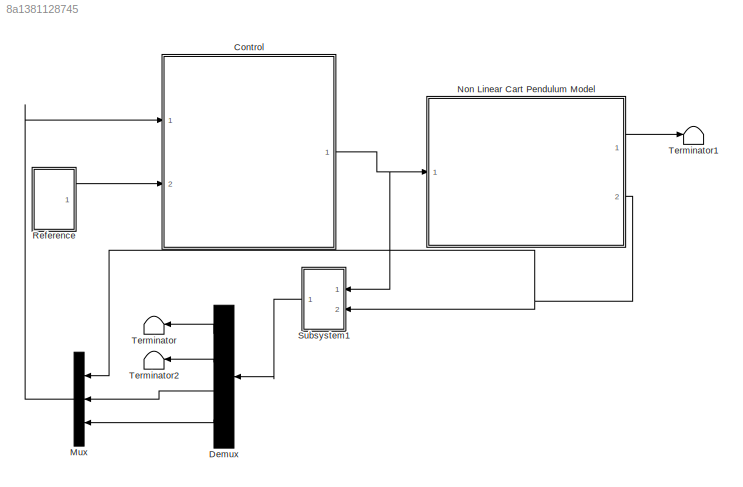
MODEL slx_8a1381128745
KIND model
CONFIG AbsTol = auto
CONFIG EnableMultiTasking = off
CONFIG FixedStep = auto
CONFIG MaxStep = auto
CONFIG MinStep = auto
CONFIG RelTol = 1e-3
CONFIG SampleTimeConstraint = Unconstrained
CONFIG Solver = VariableStepAuto
CONFIG SolverName = VariableStepAuto
CONFIG StartTime = 0.0
CONFIG StopTime = 10.0
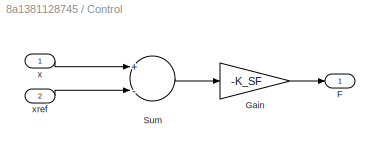
BLOCK [SubSystem] Control
  Ports = [2, 1]
  RequestExecContextInheritance = off
BLOCK [Outport] Control/F 
  IconDisplay = Port number
BLOCK [Gain] Control/Gain
  Gain = -K_SF
  Multiplication = Matrix(K*u)
  OutDataTypeStr = Inherit: Inherit via internal rule
  ParamDataTypeStr = Inherit: Inherit via internal rule
  SaturateOnIntegerOverflow = off
BLOCK [Sum] Control/Sum
  InputSameDT = off
  Inputs = +-
  OutDataTypeStr = Inherit: Inherit via internal rule
  Ports = [2, 1]
  SaturateOnIntegerOverflow = off
BLOCK [Inport] Control/x
  IconDisplay = Port number
BLOCK [Inport] Control/xref
  IconDisplay = Port number
  Port = 2
BLOCK [Demux] Demux
  DisplayOption = bar
  Ports = [1, 4]
BLOCK [Mux] Mux
  DisplayOption = bar
  Inputs = 3
  Ports = [3, 1]
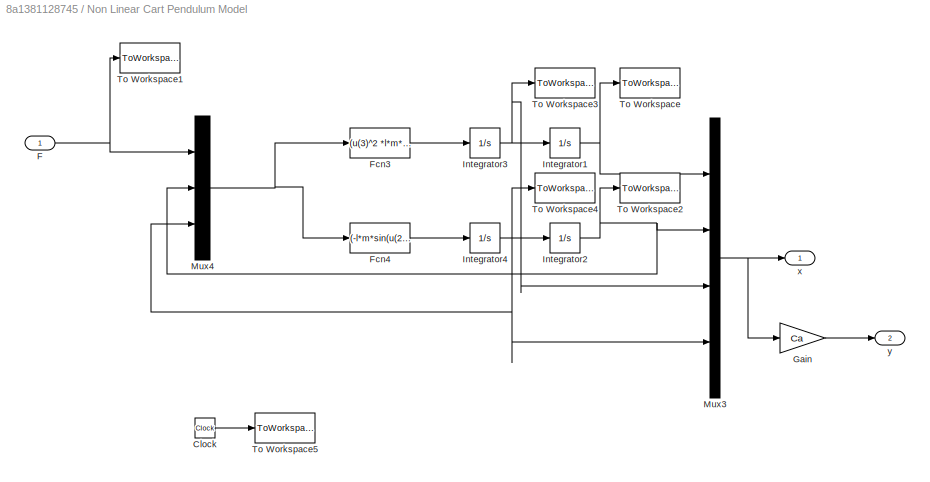
BLOCK [SubSystem] Non Linear Cart Pendulum Model
  Ports = [1, 2]
  RequestExecContextInheritance = off
BLOCK [Clock] Non Linear Cart Pendulum Model/Clock
BLOCK [Inport] Non Linear Cart Pendulum Model/F
  IconDisplay = Port number
BLOCK [Fcn] Non Linear Cart Pendulum Model/Fcn3
  Expr = (u(3)^2 *l*m*sin(u(2)) - g*m*sin(u(2))*cos(u(2)) +u(1))/(Mc+m-m*(cos(u(2))^2))
BLOCK [Fcn] Non Linear Cart Pendulum Model/Fcn4
  Expr = (-l*m*sin(u(2))*cos(u(2))*u(3)^2 + g*(Mc+m)*sin(u(2)) - cos(u(2))*u(1) )/(l*(Mc+m-m*(cos(u(2))^2)))
BLOCK [Gain] Non Linear Cart Pendulum Model/Gain
  Gain = Ca
  Multiplication = Matrix(K*u)
  OutDataTypeStr = Inherit: Inherit via internal rule
  ParamDataTypeStr = Inherit: Inherit via internal rule
  SaturateOnIntegerOverflow = off
BLOCK [Integrator] Non Linear Cart Pendulum Model/Integrator1
  InitialCondition = x10
  Ports = [1, 1]
BLOCK [Integrator] Non Linear Cart Pendulum Model/Integrator2
  InitialCondition = x20
  Ports = [1, 1]
BLOCK [Integrator] Non Linear Cart Pendulum Model/Integrator3
  InitialCondition = x30
  Ports = [1, 1]
BLOCK [Integrator] Non Linear Cart Pendulum Model/Integrator4
  InitialCondition = x40
  Ports = [1, 1]
BLOCK [Mux] Non Linear Cart Pendulum Model/Mux3
  DisplayOption = bar
  Ports = [4, 1]
BLOCK [Mux] Non Linear Cart Pendulum Model/Mux4
  DisplayOption = bar
  Inputs = 3
  Ports = [3, 1]
BLOCK [ToWorkspace] Non Linear Cart Pendulum Model/To Workspace
  FixptAsFi = on
  MaxDataPoints = inf
  Ports = [1]
  SampleTime = -1
  Save2DSignal = 3-D array (concatenate along third dimension)
  VariableName = x1
BLOCK [ToWorkspace] Non Linear Cart Pendulum Model/To Workspace1
  FixptAsFi = on
  MaxDataPoints = inf
  Ports = [1]
  SampleTime = -1
  Save2DSignal = 3-D array (concatenate along third dimension)
  VariableName = F_NL
BLOCK [ToWorkspace] Non Linear Cart Pendulum Model/To Workspace2
  FixptAsFi = on
  MaxDataPoints = inf
  Ports = [1]
  SampleTime = -1
  Save2DSignal = 3-D array (concatenate along third dimension)
  VariableName = x2
BLOCK [ToWorkspace] Non Linear Cart Pendulum Model/To Workspace3
  FixptAsFi = on
  MaxDataPoints = inf
  Ports = [1]
  SampleTime = -1
  Save2DSignal = 3-D array (concatenate along third dimension)
  VariableName = x3
BLOCK [ToWorkspace] Non Linear Cart Pendulum Model/To Workspace4
  FixptAsFi = on
  MaxDataPoints = inf
  Ports = [1]
  SampleTime = -1
  Save2DSignal = 3-D array (concatenate along third dimension)
  VariableName = x4
BLOCK [ToWorkspace] Non Linear Cart Pendulum Model/To Workspace5
  FixptAsFi = on
  MaxDataPoints = inf
  Ports = [1]
  SampleTime = -1
  Save2DSignal = 3-D array (concatenate along third dimension)
  VariableName = tout_NL
BLOCK [Outport] Non Linear Cart Pendulum Model/x
  IconDisplay = Port number
BLOCK [Outport] Non Linear Cart Pendulum Model/y
  IconDisplay = Port number
  Port = 2
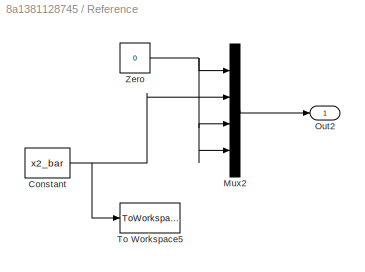
BLOCK [SubSystem] Reference
  Ports = [0, 1]
  RequestExecContextInheritance = off
BLOCK [Constant] Reference/Constant
  Value = x2_bar
BLOCK [Mux] Reference/Mux2
  DisplayOption = bar
  Ports = [4, 1]
BLOCK [Outport] Reference/Out2
  IconDisplay = Port number
BLOCK [ToWorkspace] Reference/To Workspace5
  FixptAsFi = on
  MaxDataPoints = inf
  Ports = [1]
  SampleTime = -1
  Save2DSignal = 3-D array (concatenate along third dimension)
  SaveFormat = Timeseries
  VariableName = x2bar
BLOCK [Constant] Reference/Zero
  Value = 0
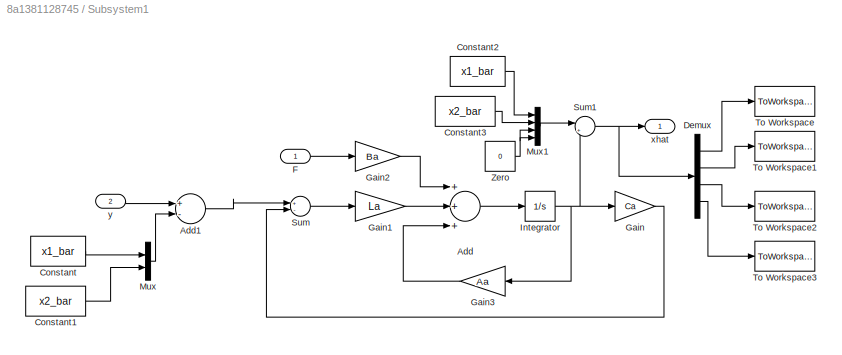
BLOCK [SubSystem] Subsystem1
  Ports = [2, 1]
  RequestExecContextInheritance = off
BLOCK [Sum] Subsystem1/Add
  InputSameDT = off
  Inputs = +++
  OutDataTypeStr = Inherit: Inherit via internal rule
  Ports = [3, 1]
  SaturateOnIntegerOverflow = off
BLOCK [Sum] Subsystem1/Add1
  InputSameDT = off
  Inputs = +-
  OutDataTypeStr = Inherit: Inherit via internal rule
  Ports = [2, 1]
  SaturateOnIntegerOverflow = off
BLOCK [Constant] Subsystem1/Constant
  Value = x1_bar
BLOCK [Constant] Subsystem1/Constant1
  Value = x2_bar
BLOCK [Constant] Subsystem1/Constant2
  Value = x1_bar
BLOCK [Constant] Subsystem1/Constant3
  Value = x2_bar
BLOCK [Demux] Subsystem1/Demux
  DisplayOption = bar
  Ports = [1, 4]
BLOCK [Inport] Subsystem1/F
  IconDisplay = Port number
BLOCK [Gain] Subsystem1/Gain
  Gain = Ca
  Multiplication = Matrix(K*u)
  OutDataTypeStr = Inherit: Inherit via internal rule
  ParamDataTypeStr = Inherit: Inherit via internal rule
  SaturateOnIntegerOverflow = off
BLOCK [Gain] Subsystem1/Gain1
  Gain = La
  Multiplication = Matrix(K*u)
  OutDataTypeStr = Inherit: Inherit via internal rule
  ParamDataTypeStr = Inherit: Inherit via internal rule
  SaturateOnIntegerOverflow = off
BLOCK [Gain] Subsystem1/Gain2
  Gain = Ba
  Multiplication = Matrix(K*u)
  OutDataTypeStr = Inherit: Inherit via internal rule
  ParamDataTypeStr = Inherit: Inherit via internal rule
  SaturateOnIntegerOverflow = off
BLOCK [Gain] Subsystem1/Gain3
  Gain = Aa
  Multiplication = Matrix(K*u)
  OutDataTypeStr = Inherit: Inherit via internal rule
  ParamDataTypeStr = Inherit: Inherit via internal rule
  SaturateOnIntegerOverflow = off
BLOCK [Integrator] Subsystem1/Integrator
  Ports = [1, 1]
BLOCK [Mux] Subsystem1/Mux
  DisplayOption = bar
  Inputs = 2
  Ports = [2, 1]
BLOCK [Mux] Subsystem1/Mux1
  DisplayOption = bar
  Ports = [4, 1]
BLOCK [Sum] Subsystem1/Sum
  InputSameDT = off
  Inputs = +-
  OutDataTypeStr = Inherit: Inherit via internal rule
  Ports = [2, 1]
  SaturateOnIntegerOverflow = off
BLOCK [Sum] Subsystem1/Sum1
  IconShape = round
  InputSameDT = off
  Inputs = |++
  OutDataTypeStr = Inherit: Inherit via internal rule
  Ports = [2, 1]
  SaturateOnIntegerOverflow = off
BLOCK [ToWorkspace] Subsystem1/To Workspace
  FixptAsFi = on
  MaxDataPoints = inf
  Ports = [1]
  SampleTime = -1
  Save2DSignal = 3-D array (concatenate along third dimension)
  VariableName = x1hat
BLOCK [ToWorkspace] Subsystem1/To Workspace1
  FixptAsFi = on
  MaxDataPoints = inf
  Ports = [1]
  SampleTime = -1
  Save2DSignal = 3-D array (concatenate along third dimension)
  VariableName = x2hat
BLOCK [ToWorkspace] Subsystem1/To Workspace2
  FixptAsFi = on
  MaxDataPoints = inf
  Ports = [1]
  SampleTime = -1
  Save2DSignal = 3-D array (concatenate along third dimension)
  VariableName = x3hat
BLOCK [ToWorkspace] Subsystem1/To Workspace3
  FixptAsFi = on
  MaxDataPoints = inf
  Ports = [1]
  SampleTime = -1
  Save2DSignal = 3-D array (concatenate along third dimension)
  VariableName = x4hat
BLOCK [Constant] Subsystem1/Zero
  Value = 0
BLOCK [Outport] Subsystem1/xhat
  IconDisplay = Port number
BLOCK [Inport] Subsystem1/y
  IconDisplay = Port number
  Port = 2
BLOCK [Terminator] Terminator
BLOCK [Terminator] Terminator1
BLOCK [Terminator] Terminator2
LINE Control/Gain:1 -> Control/F :1
LINE Control/Sum:1 -> Control/Gain:1
LINE Control/x:1 -> Control/Sum:1
LINE Control/xref:1 -> Control/Sum:2
NET Control:1 -> Non Linear Cart Pendulum Model:1, Subsystem1:1
LINE Demux:1 -> Terminator:1
LINE Demux:2 -> Terminator2:1
LINE Demux:3 -> Mux:2
LINE Demux:4 -> Mux:3
LINE Mux:1 -> Control:1
LINE Non Linear Cart Pendulum Model/Clock:1 -> Non Linear Cart Pendulum Model/To Workspace5:1
NET Non Linear Cart Pendulum Model/F:1 -> Non Linear Cart Pendulum Model/Mux4:1, Non Linear Cart Pendulum Model/To Workspace1:1
LINE Non Linear Cart Pendulum Model/Fcn3:1 -> Non Linear Cart Pendulum Model/Integrator3:1
LINE Non Linear Cart Pendulum Model/Fcn4:1 -> Non Linear Cart Pendulum Model/Integrator4:1
LINE Non Linear Cart Pendulum Model/Gain:1 -> Non Linear Cart Pendulum Model/y:1
NET Non Linear Cart Pendulum Model/Integrator1:1 -> Non Linear Cart Pendulum Model/Mux3:1, Non Linear Cart Pendulum Model/To Workspace:1
NET Non Linear Cart Pendulum Model/Integrator2:1 -> Non Linear Cart Pendulum Model/Mux3:2, Non Linear Cart Pendulum Model/Mux4:2, Non Linear Cart Pendulum Model/To Workspace2:1
NET Non Linear Cart Pendulum Model/Integrator3:1 -> Non Linear Cart Pendulum Model/Integrator1:1, Non Linear Cart Pendulum Model/Mux3:3, Non Linear Cart Pendulum Model/To Workspace3:1
NET Non Linear Cart Pendulum Model/Integrator4:1 -> Non Linear Cart Pendulum Model/Integrator2:1, Non Linear Cart Pendulum Model/Mux3:4, Non Linear Cart Pendulum Model/Mux4:3, Non Linear Cart Pendulum Model/To Workspace4:1
NET Non Linear Cart Pendulum Model/Mux3:1 -> Non Linear Cart Pendulum Model/Gain:1, Non Linear Cart Pendulum Model/x:1
NET Non Linear Cart Pendulum Model/Mux4:1 -> Non Linear Cart Pendulum Model/Fcn3:1, Non Linear Cart Pendulum Model/Fcn4:1
LINE Non Linear Cart Pendulum Model:1 -> Terminator1:1
NET Non Linear Cart Pendulum Model:2 -> Mux:1, Subsystem1:2
NET Reference/Constant:1 -> Reference/Mux2:2, Reference/To Workspace5:1
LINE Reference/Mux2:1 -> Reference/Out2:1
NET Reference/Zero:1 -> Reference/Mux2:1, Reference/Mux2:3, Reference/Mux2:4
LINE Reference:1 -> Control:2
LINE Subsystem1/Add1:1 -> Subsystem1/Sum:1
LINE Subsystem1/Add:1 -> Subsystem1/Integrator:1
LINE Subsystem1/Constant1:1 -> Subsystem1/Mux:2
LINE Subsystem1/Constant2:1 -> Subsystem1/Mux1:1
LINE Subsystem1/Constant3:1 -> Subsystem1/Mux1:2
LINE Subsystem1/Constant:1 -> Subsystem1/Mux:1
LINE Subsystem1/Demux:1 -> Subsystem1/To Workspace:1
LINE Subsystem1/Demux:2 -> Subsystem1/To Workspace1:1
LINE Subsystem1/Demux:3 -> Subsystem1/To Workspace2:1
LINE Subsystem1/Demux:4 -> Subsystem1/To Workspace3:1
LINE Subsystem1/F:1 -> Subsystem1/Gain2:1
LINE Subsystem1/Gain1:1 -> Subsystem1/Add:2
LINE Subsystem1/Gain2:1 -> Subsystem1/Add:1
LINE Subsystem1/Gain3:1 -> Subsystem1/Add:3
LINE Subsystem1/Gain:1 -> Subsystem1/Sum:2
NET Subsystem1/Integrator:1 -> Subsystem1/Gain3:1, Subsystem1/Gain:1, Subsystem1/Sum1:2
LINE Subsystem1/Mux1:1 -> Subsystem1/Sum1:1
LINE Subsystem1/Mux:1 -> Subsystem1/Add1:2
NET Subsystem1/Sum1:1 -> Subsystem1/Demux:1, Subsystem1/xhat:1
LINE Subsystem1/Sum:1 -> Subsystem1/Gain1:1
NET Subsystem1/Zero:1 -> Subsystem1/Mux1:3, Subsystem1/Mux1:4
LINE Subsystem1/y:1 -> Subsystem1/Add1:1
LINE Subsystem1:1 -> Demux:1
note: NET lines group one-source signal fan-out (src -> all destinations, sorted); 1:1 wires keep LINE
